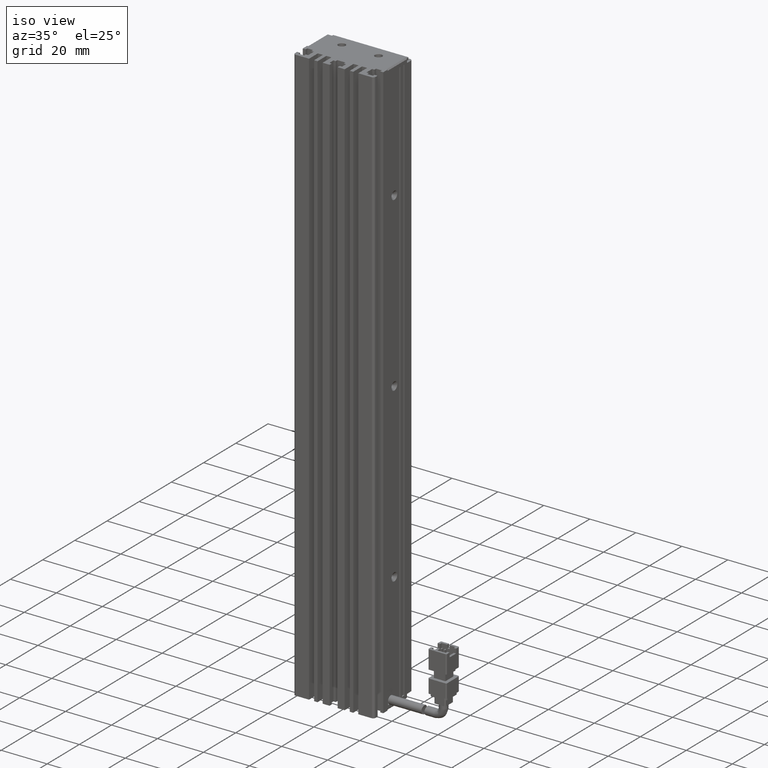
[diagram: clean part render]
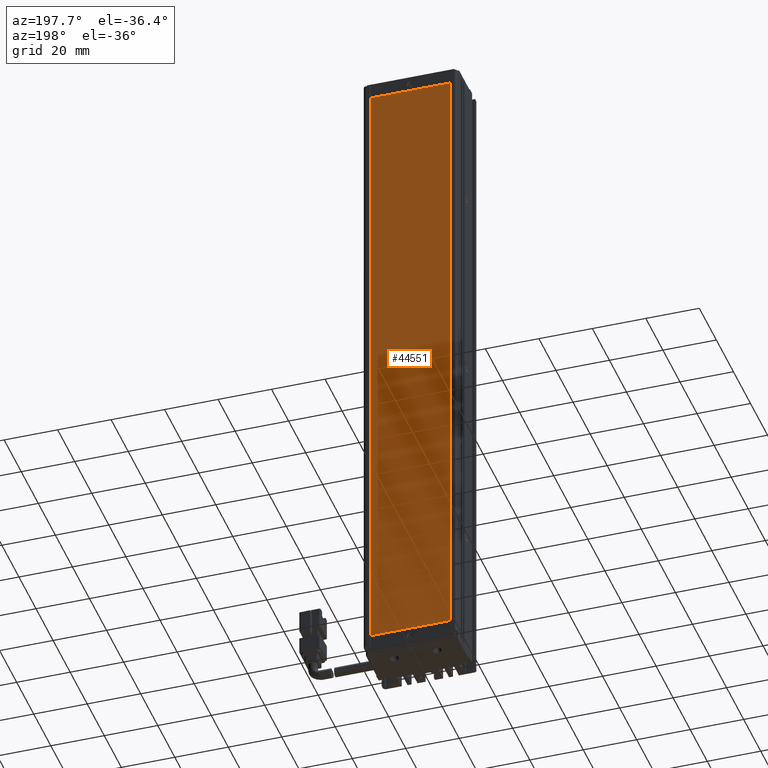
[diagram: tour spotlight — one face highlighted and labeled with its STEP entity id]
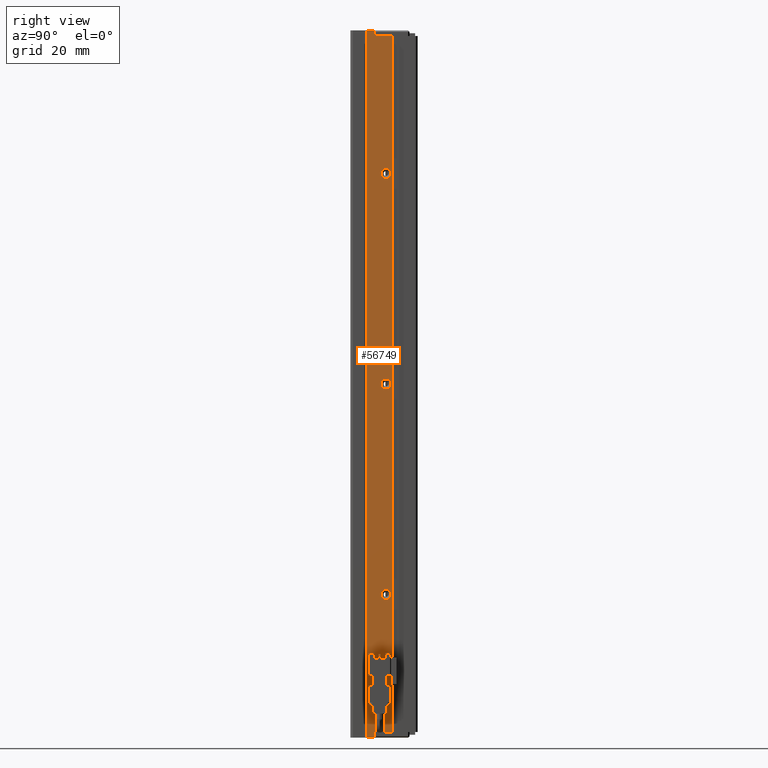
[diagram: tour spotlight — one face highlighted and labeled with its STEP entity id]
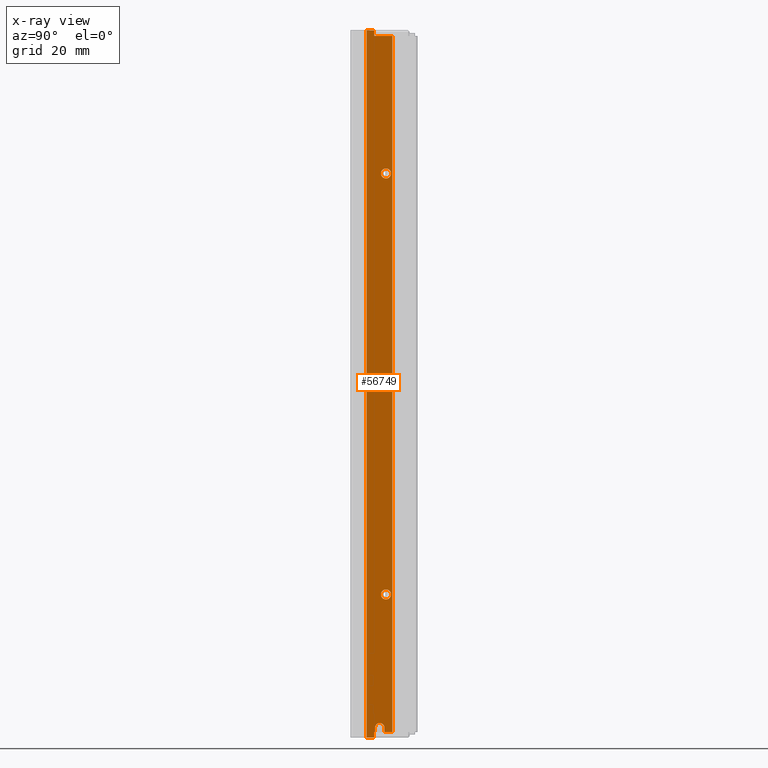
[diagram: x-ray of the same camera — body ghosted, this tour face saturated]
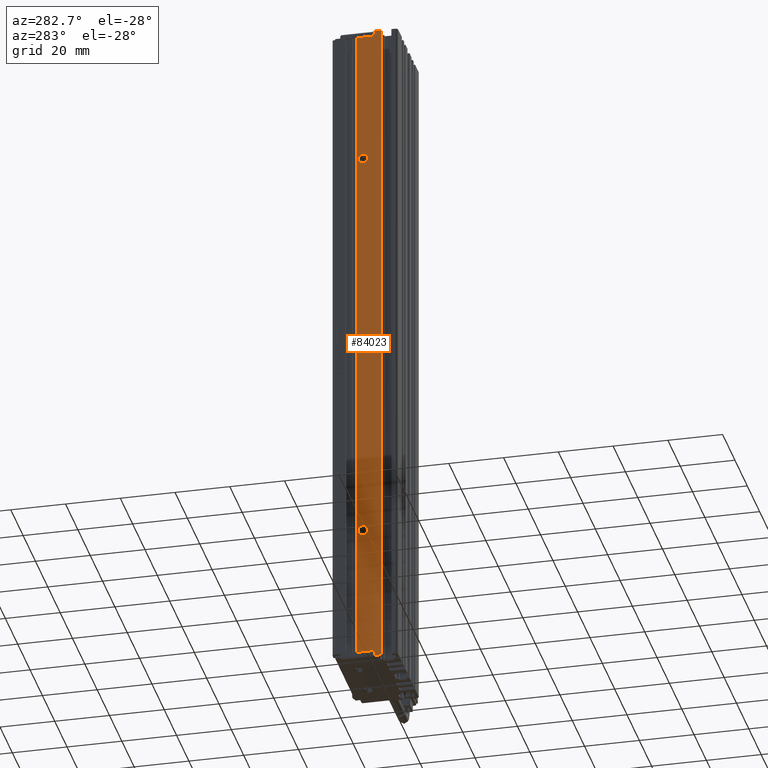
[diagram: tour spotlight — one face highlighted and labeled with its STEP entity id]
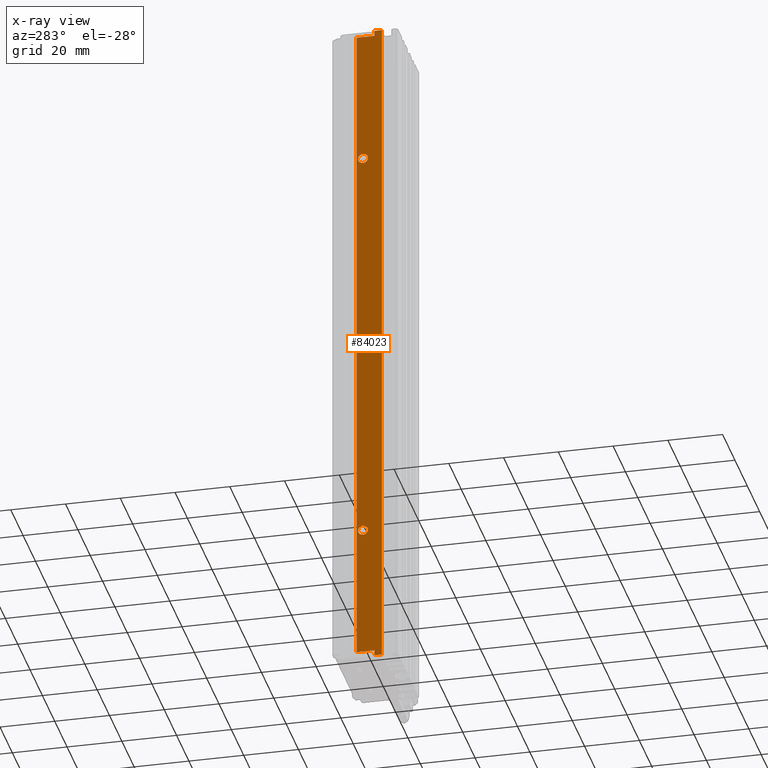
[diagram: x-ray of the same camera — body ghosted, this tour face saturated]
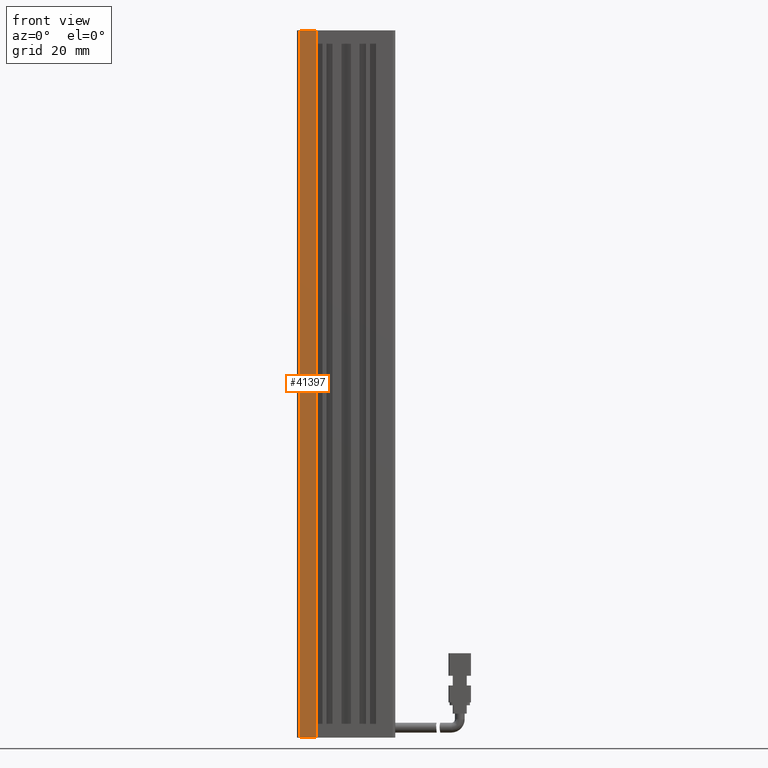
[diagram: tour spotlight — one face highlighted and labeled with its STEP entity id]
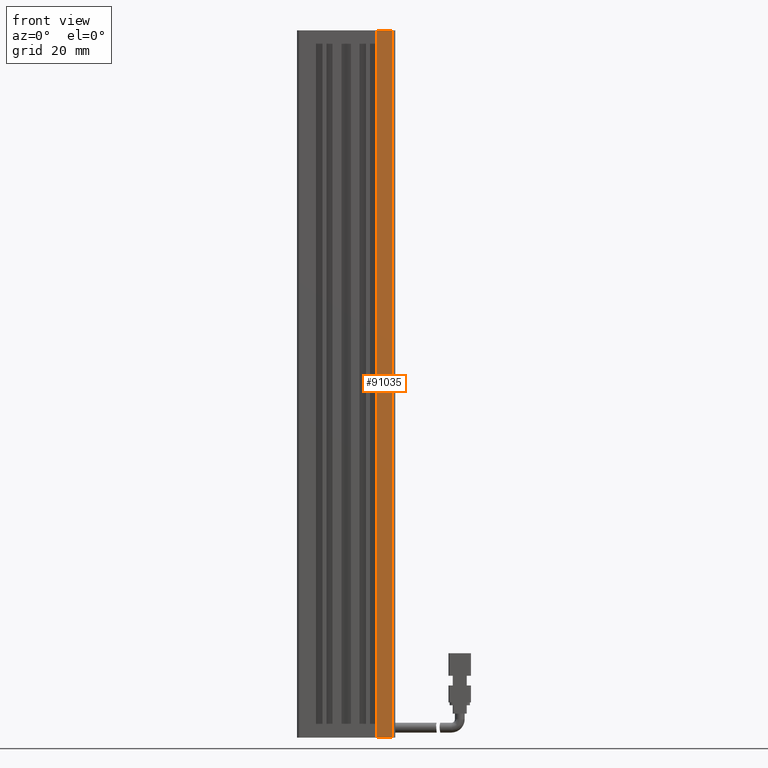
[diagram: tour spotlight — one face highlighted and labeled with its STEP entity id]
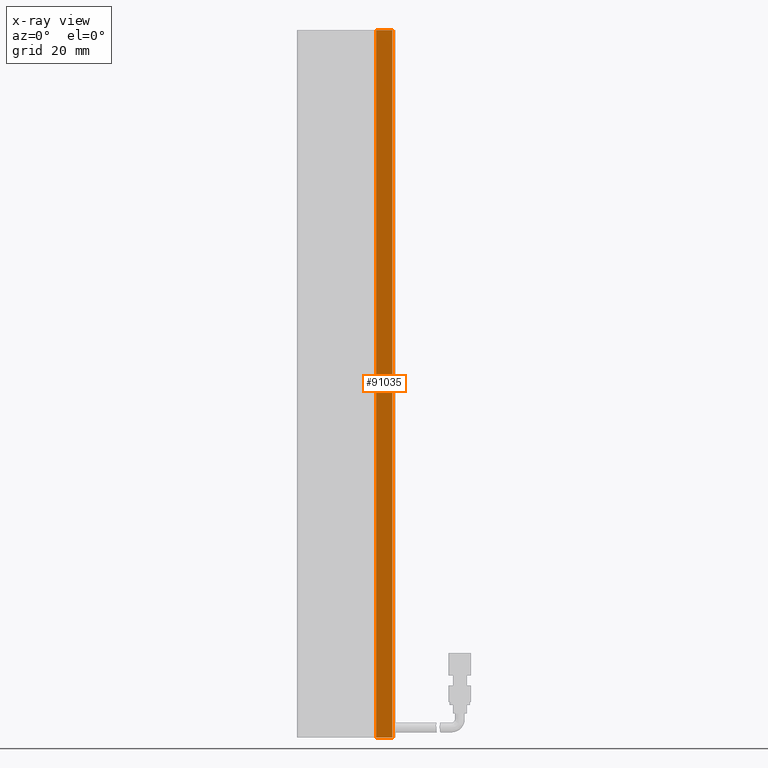
[diagram: x-ray of the same camera — body ghosted, this tour face saturated]
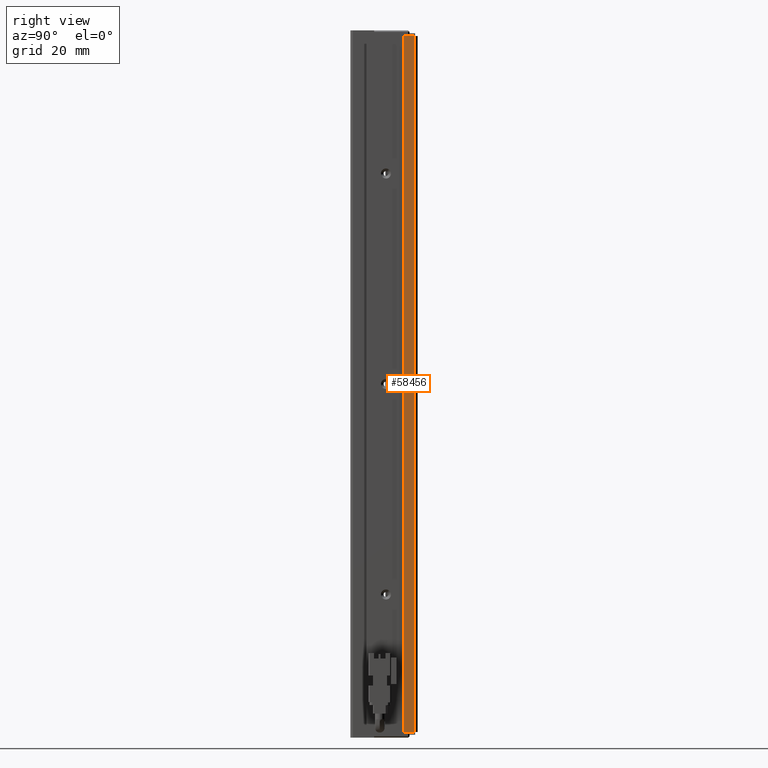
[diagram: tour spotlight — one face highlighted and labeled with its STEP entity id]
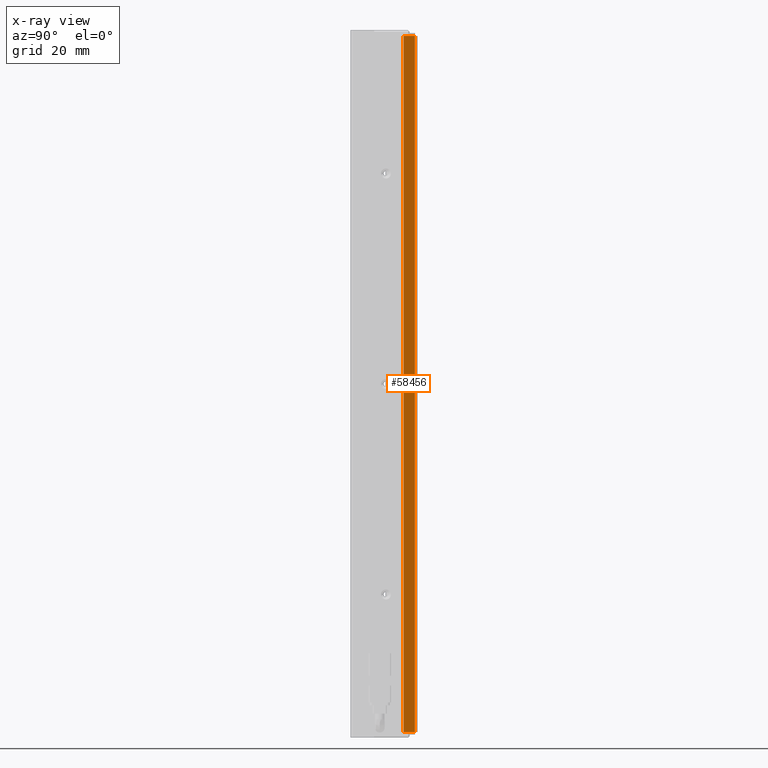
[diagram: x-ray of the same camera — body ghosted, this tour face saturated]
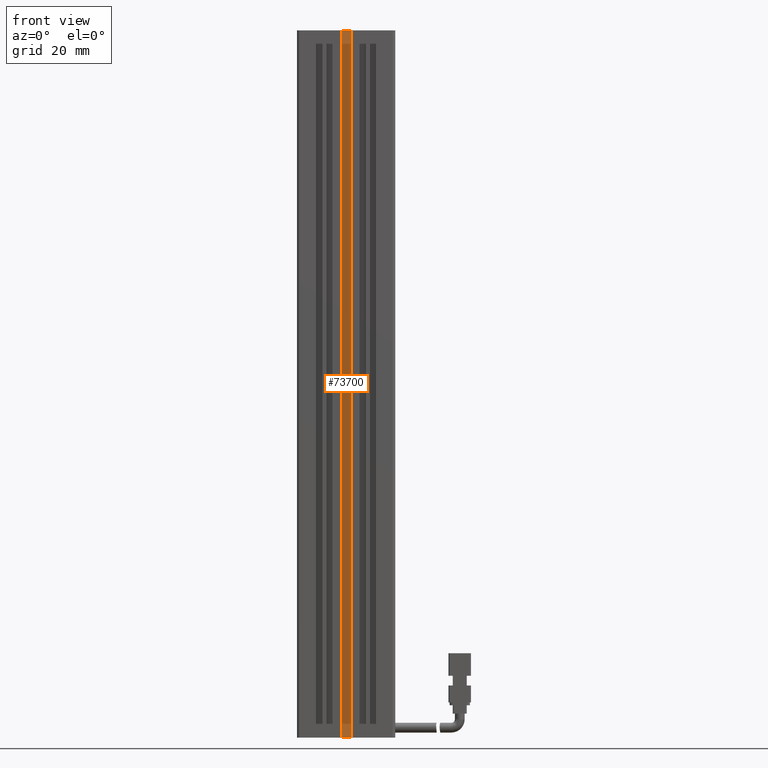
[diagram: tour spotlight — one face highlighted and labeled with its STEP entity id]
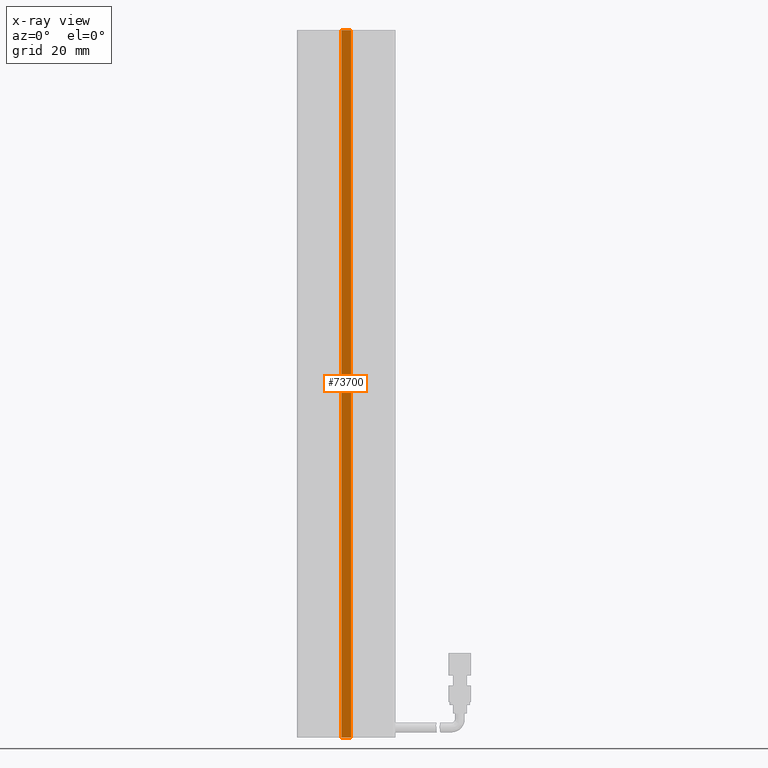
[diagram: x-ray of the same camera — body ghosted, this tour face saturated]
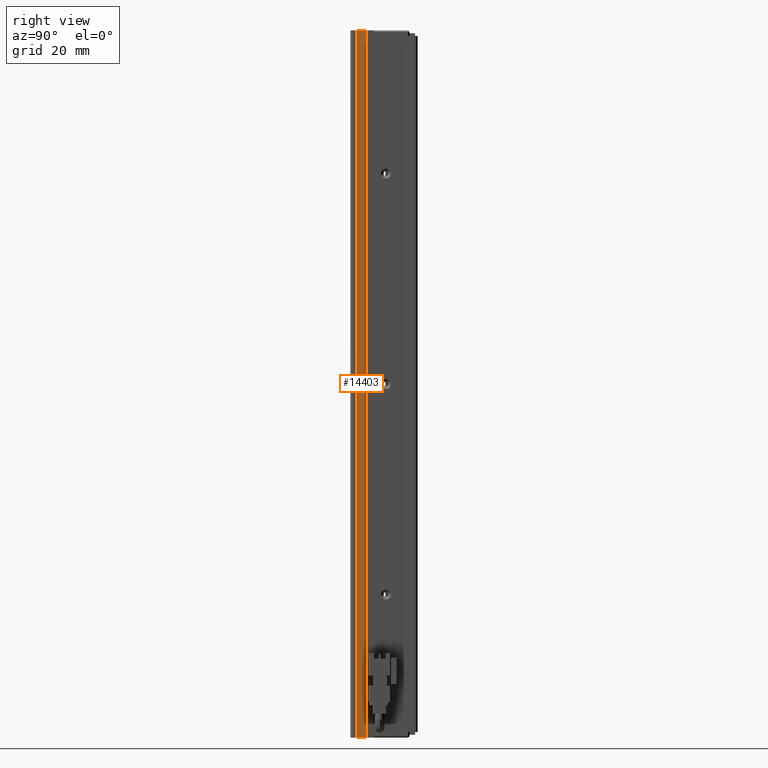
[diagram: tour spotlight — one face highlighted and labeled with its STEP entity id]
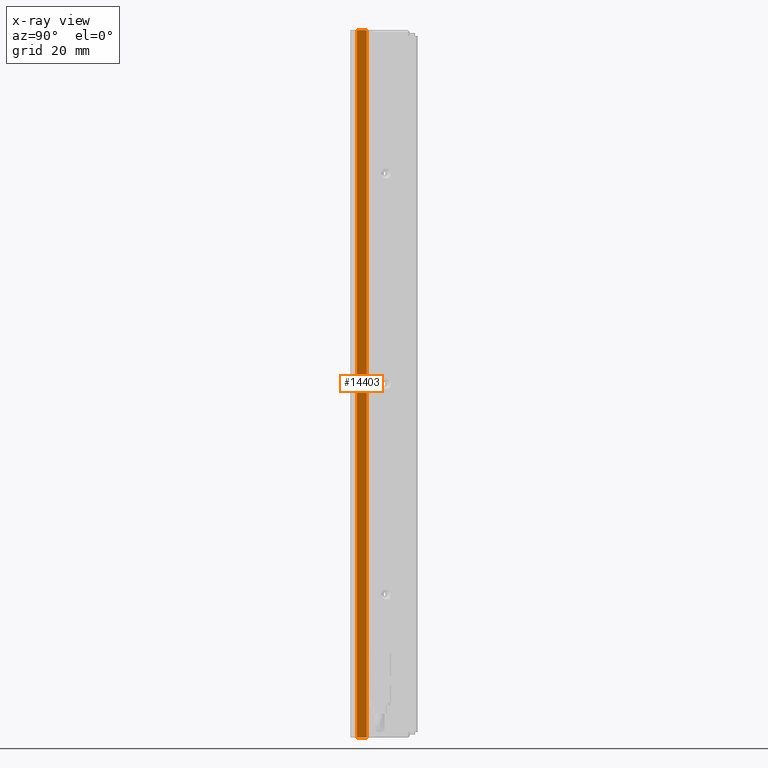
[diagram: x-ray of the same camera — body ghosted, this tour face saturated]
A machine part: a face-by-face anatomy tour. The part has 2226 B-rep faces; the first image is the clean iso view, then the 8 largest visible faces are spotlighted one at a time (largest first), each with its STEP entity span.

Face 1 — auxiliary view, entity #44551. In plain terms, the highlighted planar face has unit normal (0, 1, 0).
Definition (entity closure, byte-faithful):
#3005 = EDGE_LOOP ( 'NONE', ( #80741, #17107, #62490, #27898, #78330 ) ) ;
#5441 = CARTESIAN_POINT ( 'NONE',  ( 55.92537974683542500, 34.29073232304837400, -233.9999728042264200 ) ) ;
#9055 = EDGE_CURVE ( 'NONE', #32840, #63961, #89440, .T. ) ;
#9204 = EDGE_CURVE ( 'NONE', #74088, #32840, #18099, .T. ) ;
#11565 = VERTEX_POINT ( 'NONE', #77264 ) ;
#15329 = CARTESIAN_POINT ( 'NONE',  ( 25.92537974683542500, 34.29073232304837400, -233.9999728042264200 ) ) ;
#17107 = ORIENTED_EDGE ( 'NONE', *, *, #9055, .T. ) ;
#17620 = EDGE_CURVE ( 'NONE', #63961, #11565, #38423, .T. ) ;
#18099 = LINE ( 'NONE', #36057, #83551 ) ;
#20950 = VECTOR ( 'NONE', #50201, 1000.000000000000000 ) ;
#22619 = FACE_OUTER_BOUND ( 'NONE', #3005, .T. ) ;
#26412 = VECTOR ( 'NONE', #62559, 1000.000000000000000 ) ;
#27898 = ORIENTED_EDGE ( 'NONE', *, *, #59986, .T. ) ;
#30666 = CARTESIAN_POINT ( 'NONE',  ( 55.84492731756621000, 34.29073232304837400, -115.0000000000000000 ) ) ;
#32840 = VERTEX_POINT ( 'NONE', #30666 ) ;
#33476 = CARTESIAN_POINT ( 'NONE',  ( 25.92537974683545300, 34.29073232304837400, 4.000027195773581600 ) ) ;
#36057 = CARTESIAN_POINT ( 'NONE',  ( 55.92537974683545300, 34.29073232304837400, 4.000027195773581600 ) ) ;
#38423 = LINE ( 'NONE', #5441, #20950 ) ;
#39472 = DIRECTION ( 'NONE',  ( 0.0000000000000000000, 1.000000000000000000, 0.0000000000000000000 ) ) ;
#44551 = ADVANCED_FACE ( 'NONE', ( #22619 ), #67897, .T. ) ;
#46376 = CARTESIAN_POINT ( 'NONE',  ( 3.278282036302795100E-032, 34.29073232304837400, 4.549530247398007300E-048 ) ) ;
#46951 = CARTESIAN_POINT ( 'NONE',  ( 55.92537974683545300, 34.29073232304837400, 4.000027195773581600 ) ) ;
#50201 = DIRECTION ( 'NONE',  ( -1.000000000000000000, 0.0000000000000000000, 0.0000000000000000000 ) ) ;
#51298 = LINE ( 'NONE', #66431, #59412 ) ;
#52038 = LINE ( 'NONE', #15329, #80028 ) ;
#53304 = DIRECTION ( 'NONE',  ( 0.0000000000000000000, -0.0000000000000000000, 1.000000000000000000 ) ) ;
#58987 = DIRECTION ( 'NONE',  ( 1.000000000000000000, 0.0000000000000000000, 0.0000000000000000000 ) ) ;
#59412 = VECTOR ( 'NONE', #58987, 1000.000000000000000 ) ;
#59986 = EDGE_CURVE ( 'NONE', #11565, #91049, #52038, .T. ) ;
#60606 = CARTESIAN_POINT ( 'NONE',  ( 55.84492731756621000, 34.29073232304837400, -115.0000000000000000 ) ) ;
#62490 = ORIENTED_EDGE ( 'NONE', *, *, #17620, .T. ) ;
#62559 = DIRECTION ( 'NONE',  ( 0.0006760708341950601100, 0.0000000000000000000, -0.9999997714640873600 ) ) ;
#63961 = VERTEX_POINT ( 'NONE', #87865 ) ;
#66335 = DIRECTION ( 'NONE',  ( 1.166200656118862000E-016, 0.0000000000000000000, 1.000000000000000000 ) ) ;
#66431 = CARTESIAN_POINT ( 'NONE',  ( 25.92537974683545300, 34.29073232304837400, 4.000027195773581600 ) ) ;
#67897 = PLANE ( 'NONE',  #71863 ) ;
#71863 = AXIS2_PLACEMENT_3D ( 'NONE', #46376, #39472, #53304 ) ;
#73598 = DIRECTION ( 'NONE',  ( -0.0006760705251825751300, 0.0000000000000000000, -0.9999997714642964200 ) ) ;
#74088 = VERTEX_POINT ( 'NONE', #46951 ) ;
#77264 = CARTESIAN_POINT ( 'NONE',  ( 25.92537974683542500, 34.29073232304837400, -233.9999728042264200 ) ) ;
#78330 = ORIENTED_EDGE ( 'NONE', *, *, #79213, .T. ) ;
#79213 = EDGE_CURVE ( 'NONE', #91049, #74088, #51298, .T. ) ;
#80028 = VECTOR ( 'NONE', #66335, 1000.000000000000000 ) ;
#80741 = ORIENTED_EDGE ( 'NONE', *, *, #9204, .T. ) ;
#83551 = VECTOR ( 'NONE', #73598, 1000.000000000000000 ) ;
#87865 = CARTESIAN_POINT ( 'NONE',  ( 55.92537974683542500, 34.29073232304837400, -233.9999728042264200 ) ) ;
#89440 = LINE ( 'NONE', #60606, #26412 ) ;
#91049 = VERTEX_POINT ( 'NONE', #33476 ) ;

Face 2 — right view, entity #56749. An x-ray twin of the same camera follows (body ghosted, this face saturated) — the face is partly hidden behind the body. In plain terms, the highlighted planar face has unit normal (-1, -0, 0).
Definition (entity closure, byte-faithful):
#62 = CARTESIAN_POINT ( 'NONE',  ( 58.42537974683542500, 19.49073232304837000, 10.99999999999999600 ) ) ;
#553 = DIRECTION ( 'NONE',  ( 7.380418287155808400E-032, -1.000000000000000000, 0.0000000000000000000 ) ) ;
#1023 = AXIS2_PLACEMENT_3D ( 'NONE', #17154, #75976, #76618 ) ;
#1386 = DIRECTION ( 'NONE',  ( 1.000000000000000000, 0.0000000000000000000, 0.0000000000000000000 ) ) ;
#2624 = VECTOR ( 'NONE', #73278, 1000.000000000000000 ) ;
#2917 = CARTESIAN_POINT ( 'NONE',  ( 58.42537974683542500, 16.79073232304836700, 10.99999999999999600 ) ) ;
#3075 = EDGE_CURVE ( 'NONE', #84369, #9511, #4636, .T. ) ;
#3574 = VERTEX_POINT ( 'NONE', #34670 ) ;
#4065 = DIRECTION ( 'NONE',  ( -0.0000000000000000000, 2.238352872228164500E-015, -1.000000000000000000 ) ) ;
#4128 = CARTESIAN_POINT ( 'NONE',  ( 58.42537974683542500, 7.083797468354437600, -241.0000000000000000 ) ) ;
#4382 = VECTOR ( 'NONE', #75420, 1000.000000000000000 ) ;
#4636 = LINE ( 'NONE', #4128, #81696 ) ;
#4966 = AXIS2_PLACEMENT_3D ( 'NONE', #59893, #73303, #37330 ) ;
#5357 = VECTOR ( 'NONE', #48280, 1000.000000000000000 ) ;
#5842 = VERTEX_POINT ( 'NONE', #58763 ) ;
#6730 = CARTESIAN_POINT ( 'NONE',  ( 58.42537974681950900, 23.69073232304836900, -190.0000000000000300 ) ) ;
#7846 = FACE_BOUND ( 'NONE', #68425, .T. ) ;
#7907 = CARTESIAN_POINT ( 'NONE',  ( 58.42537974683542500, 19.84073232304836400, -237.4500000000000200 ) ) ;
#8519 = VECTOR ( 'NONE', #35567, 1000.000000000000000 ) ;
#9435 = CIRCLE ( 'NONE', #34965, 1.800000000059753800 ) ;
#9511 = VERTEX_POINT ( 'NONE', #54990 ) ;
#9549 = ORIENTED_EDGE ( 'NONE', *, *, #58088, .F. ) ;
#10178 = VERTEX_POINT ( 'NONE', #59249 ) ;
#10857 = AXIS2_PLACEMENT_3D ( 'NONE', #30155, #74622, #51536 ) ;
#11833 = VECTOR ( 'NONE', #53041, 1000.000000000000000 ) ;
#12943 = VERTEX_POINT ( 'NONE', #46798 ) ;
#13125 = CIRCLE ( 'NONE', #14846, 1.799999999991502800 ) ;
#13185 = DIRECTION ( 'NONE',  ( 1.000000000000000000, 5.687617954022314700E-016, 0.0000000000000000000 ) ) ;
#13514 = CARTESIAN_POINT ( 'NONE',  ( 58.42537974683542500, 21.49073232304837000, -237.4500000000000200 ) ) ;
#14120 = CIRCLE ( 'NONE', #38283, 1.650000000000002100 ) ;
#14200 = PLANE ( 'NONE',  #10857 ) ;
#14846 = AXIS2_PLACEMENT_3D ( 'NONE', #6730, #29837, #37057 ) ;
#14882 = CARTESIAN_POINT ( 'NONE',  ( 58.42537974683542500, 19.49073232304837000, -241.0000000000000000 ) ) ;
#15252 = DIRECTION ( 'NONE',  ( 0.0000000000000000000, 0.0000000000000000000, -1.000000000000000000 ) ) ;
#16472 = ORIENTED_EDGE ( 'NONE', *, *, #53379, .F. ) ;
#16561 = ORIENTED_EDGE ( 'NONE', *, *, #89348, .T. ) ;
#17154 = CARTESIAN_POINT ( 'NONE',  ( 58.42537974681950900, 23.69073232304837300, -40.00000000000002100 ) ) ;
#18124 = EDGE_CURVE ( 'NONE', #56627, #31394, #84624, .T. ) ;
#18355 = LINE ( 'NONE', #40161, #95506 ) ;
#18933 = CIRCLE ( 'NONE', #53046, 1.800000000059753800 ) ;
#20764 = CARTESIAN_POINT ( 'NONE',  ( 58.42537974681950900, 23.69073232304837300, -41.80000000001428600 ) ) ;
#21268 = VECTOR ( 'NONE', #76934, 1000.000000000000000 ) ;
#21369 = LINE ( 'NONE', #33168, #21268 ) ;
#21597 = VERTEX_POINT ( 'NONE', #2917 ) ;
#21898 = FACE_OUTER_BOUND ( 'NONE', #33293, .T. ) ;
#22520 = VECTOR ( 'NONE', #51091, 1000.000000000000000 ) ;
#23171 = VERTEX_POINT ( 'NONE', #65420 ) ;
#23788 = CARTESIAN_POINT ( 'NONE',  ( 58.42537974687635200, 23.69073232304837300, -115.0000000000000000 ) ) ;
#24515 = VERTEX_POINT ( 'NONE', #50995 ) ;
#25812 = DIRECTION ( 'NONE',  ( 0.0000000000000000000, 0.0000000000000000000, -1.000000000000000000 ) ) ;
#26236 = CARTESIAN_POINT ( 'NONE',  ( 58.42537974683542500, 23.14073232304837200, -239.0000000000000000 ) ) ;
#26818 = EDGE_CURVE ( 'NONE', #84369, #12943, #42387, .T. ) ;
#26993 = ORIENTED_EDGE ( 'NONE', *, *, #67306, .F. ) ;
#28355 = EDGE_LOOP ( 'NONE', ( #70000, #16472 ) ) ;
#29503 = EDGE_CURVE ( 'NONE', #24515, #55608, #31191, .T. ) ;
#29837 = DIRECTION ( 'NONE',  ( 1.000000000000000000, 0.0000000000000000000, 0.0000000000000000000 ) ) ;
#30155 = CARTESIAN_POINT ( 'NONE',  ( 58.42537974683542500, 7.083797468354437600, 10.99999999999999600 ) ) ;
#31191 = LINE ( 'NONE', #68198, #4382 ) ;
#31394 = VERTEX_POINT ( 'NONE', #70528 ) ;
#31647 = ORIENTED_EDGE ( 'NONE', *, *, #66998, .F. ) ;
#32214 = CARTESIAN_POINT ( 'NONE',  ( 58.42537974683542500, 7.083797468354437600, -239.0000000000000000 ) ) ;
#32724 = VERTEX_POINT ( 'NONE', #81043 ) ;
#33168 = CARTESIAN_POINT ( 'NONE',  ( 58.42537974683542500, 7.083797468354435800, 10.99999999999999600 ) ) ;
#33293 = EDGE_LOOP ( 'NONE', ( #16561, #79610, #75245, #61679, #31647, #86830, #53802, #26993, #52382, #76377, #74060, #77654 ) ) ;
#33319 = EDGE_CURVE ( 'NONE', #84648, #40392, #91178, .T. ) ;
#34670 = CARTESIAN_POINT ( 'NONE',  ( 58.42537974681950900, 23.69073232304836900, -191.7999999999915400 ) ) ;
#34753 = CARTESIAN_POINT ( 'NONE',  ( 58.42537974687635200, 23.69073232304837300, -116.8000000000597500 ) ) ;
#34965 = AXIS2_PLACEMENT_3D ( 'NONE', #90456, #1386, #61776 ) ;
#35567 = DIRECTION ( 'NONE',  ( -0.0000000000000000000, -0.0000000000000000000, -1.000000000000000000 ) ) ;
#37057 = DIRECTION ( 'NONE',  ( 0.0000000000000000000, 0.0000000000000000000, -1.000000000000000000 ) ) ;
#37330 = DIRECTION ( 'NONE',  ( 0.0000000000000000000, 0.0000000000000000000, -1.000000000000000000 ) ) ;
#38283 = AXIS2_PLACEMENT_3D ( 'NONE', #13514, #13185, #72946 ) ;
#40161 = CARTESIAN_POINT ( 'NONE',  ( 58.42537974683542500, 19.84073232304836400, -239.0000000000000300 ) ) ;
#40392 = VERTEX_POINT ( 'NONE', #53880 ) ;
#42387 = LINE ( 'NONE', #62, #22520 ) ;
#42424 = CARTESIAN_POINT ( 'NONE',  ( 58.42537974683542500, 25.99073232304837700, 10.99999999999999600 ) ) ;
#43809 = CARTESIAN_POINT ( 'NONE',  ( 58.42537974683542500, 7.083797468354437600, 8.999999999999994700 ) ) ;
#45030 = LINE ( 'NONE', #32214, #5357 ) ;
#46798 = CARTESIAN_POINT ( 'NONE',  ( 58.42537974683542500, 19.49073232304837000, -239.0000000000000000 ) ) ;
#47612 = EDGE_CURVE ( 'NONE', #24515, #5842, #52748, .T. ) ;
#47741 = DIRECTION ( 'NONE',  ( -0.0000000000000000000, 0.0000000000000000000, 1.000000000000000000 ) ) ;
#48188 = CARTESIAN_POINT ( 'NONE',  ( 58.42537974683542500, 23.14073232304837200, -237.4500000000000200 ) ) ;
#48280 = DIRECTION ( 'NONE',  ( 7.380418287155808400E-032, -1.000000000000000000, 0.0000000000000000000 ) ) ;
#49155 = CARTESIAN_POINT ( 'NONE',  ( 58.42537974683542500, 19.49073232304837000, 10.99999999999999600 ) ) ;
#50249 = EDGE_CURVE ( 'NONE', #10178, #40392, #54243, .T. ) ;
#50995 = CARTESIAN_POINT ( 'NONE',  ( 58.42537974683542500, 19.49073232304837000, 8.999999999999994700 ) ) ;
#51091 = DIRECTION ( 'NONE',  ( -0.0000000000000000000, 0.0000000000000000000, 1.000000000000000000 ) ) ;
#51172 = AXIS2_PLACEMENT_3D ( 'NONE', #62721, #92726, #25812 ) ;
#51536 = DIRECTION ( 'NONE',  ( 7.380418287155808400E-032, -1.000000000000000000, 0.0000000000000000000 ) ) ;
#51775 = CARTESIAN_POINT ( 'NONE',  ( 58.42537974683542500, 16.79073232304836700, 10.99999999999999600 ) ) ;
#52211 = CARTESIAN_POINT ( 'NONE',  ( 58.42537974683542500, 7.083797468354437600, -239.0000000000000000 ) ) ;
#52382 = ORIENTED_EDGE ( 'NONE', *, *, #69033, .F. ) ;
#52713 = ORIENTED_EDGE ( 'NONE', *, *, #87960, .F. ) ;
#52748 = LINE ( 'NONE', #43809, #11833 ) ;
#53041 = DIRECTION ( 'NONE',  ( -7.380418287155808400E-032, 1.000000000000000000, -0.0000000000000000000 ) ) ;
#53046 = AXIS2_PLACEMENT_3D ( 'NONE', #23788, #82881, #15252 ) ;
#53379 = EDGE_CURVE ( 'NONE', #23171, #3574, #70352, .T. ) ;
#53802 = ORIENTED_EDGE ( 'NONE', *, *, #29503, .T. ) ;
#53880 = CARTESIAN_POINT ( 'NONE',  ( 58.42537974683542500, 23.14073232304837200, -239.0000000000000000 ) ) ;
#54243 = LINE ( 'NONE', #52211, #58899 ) ;
#54990 = CARTESIAN_POINT ( 'NONE',  ( 58.42537974683542500, 16.79073232304836700, -241.0000000000000000 ) ) ;
#55608 = VERTEX_POINT ( 'NONE', #49155 ) ;
#56627 = VERTEX_POINT ( 'NONE', #20764 ) ;
#56749 = ADVANCED_FACE ( 'NONE', ( #68626, #86193, #21898, #7846 ), #14200, .F. ) ;
#57081 = VERTEX_POINT ( 'NONE', #34753 ) ;
#57675 = LINE ( 'NONE', #42424, #8519 ) ;
#58088 = EDGE_CURVE ( 'NONE', #31394, #56627, #90197, .T. ) ;
#58763 = CARTESIAN_POINT ( 'NONE',  ( 58.42537974683542500, 25.99073232304837700, 8.999999999999994700 ) ) ;
#58899 = VECTOR ( 'NONE', #553, 1000.000000000000000 ) ;
#59249 = CARTESIAN_POINT ( 'NONE',  ( 58.42537974683542500, 25.99073232304837300, -239.0000000000000000 ) ) ;
#59893 = CARTESIAN_POINT ( 'NONE',  ( 58.42537974681950900, 23.69073232304836900, -190.0000000000000300 ) ) ;
#61274 = EDGE_CURVE ( 'NONE', #84648, #63497, #14120, .T. ) ;
#61679 = ORIENTED_EDGE ( 'NONE', *, *, #50249, .F. ) ;
#61776 = DIRECTION ( 'NONE',  ( 0.0000000000000000000, 0.0000000000000000000, -1.000000000000000000 ) ) ;
#62721 = CARTESIAN_POINT ( 'NONE',  ( 58.42537974681950900, 23.69073232304837300, -40.00000000000002100 ) ) ;
#63086 = EDGE_CURVE ( 'NONE', #3574, #23171, #13125, .T. ) ;
#63497 = VERTEX_POINT ( 'NONE', #7907 ) ;
#63864 = DIRECTION ( 'NONE',  ( 7.380418287155808400E-032, -1.000000000000000000, 0.0000000000000000000 ) ) ;
#65420 = CARTESIAN_POINT ( 'NONE',  ( 58.42537974681950900, 23.69073232304836900, -188.2000000000085200 ) ) ;
#66998 = EDGE_CURVE ( 'NONE', #5842, #10178, #57675, .T. ) ;
#67306 = EDGE_CURVE ( 'NONE', #21597, #55608, #21369, .T. ) ;
#68198 = CARTESIAN_POINT ( 'NONE',  ( 58.42537974683542500, 19.49073232304837000, 10.99999999999999600 ) ) ;
#68425 = EDGE_LOOP ( 'NONE', ( #92985, #52713 ) ) ;
#68626 = FACE_BOUND ( 'NONE', #28355, .T. ) ;
#69033 = EDGE_CURVE ( 'NONE', #9511, #21597, #94874, .T. ) ;
#70000 = ORIENTED_EDGE ( 'NONE', *, *, #63086, .F. ) ;
#70352 = CIRCLE ( 'NONE', #4966, 1.799999999991502800 ) ;
#70528 = CARTESIAN_POINT ( 'NONE',  ( 58.42537974681950900, 23.69073232304837300, -38.19999999998575600 ) ) ;
#72034 = EDGE_CURVE ( 'NONE', #32724, #12943, #45030, .T. ) ;
#72946 = DIRECTION ( 'NONE',  ( 0.0000000000000000000, 1.000000000000000000, 0.0000000000000000000 ) ) ;
#73278 = DIRECTION ( 'NONE',  ( 0.0000000000000000000, 0.0000000000000000000, 1.000000000000000000 ) ) ;
#73303 = DIRECTION ( 'NONE',  ( 1.000000000000000000, 0.0000000000000000000, 0.0000000000000000000 ) ) ;
#74060 = ORIENTED_EDGE ( 'NONE', *, *, #26818, .T. ) ;
#74066 = CARTESIAN_POINT ( 'NONE',  ( 58.42537974687635200, 23.69073232304837300, -113.1999999999402500 ) ) ;
#74622 = DIRECTION ( 'NONE',  ( -1.000000000000000000, -7.380418287155808400E-032, 0.0000000000000000000 ) ) ;
#75245 = ORIENTED_EDGE ( 'NONE', *, *, #33319, .T. ) ;
#75420 = DIRECTION ( 'NONE',  ( -0.0000000000000000000, 0.0000000000000000000, 1.000000000000000000 ) ) ;
#75976 = DIRECTION ( 'NONE',  ( 1.000000000000000000, 0.0000000000000000000, 0.0000000000000000000 ) ) ;
#76377 = ORIENTED_EDGE ( 'NONE', *, *, #3075, .F. ) ;
#76618 = DIRECTION ( 'NONE',  ( 0.0000000000000000000, 0.0000000000000000000, -1.000000000000000000 ) ) ;
#76934 = DIRECTION ( 'NONE',  ( 0.0000000000000000000, 1.000000000000000000, 0.0000000000000000000 ) ) ;
#77136 = ORIENTED_EDGE ( 'NONE', *, *, #18124, .F. ) ;
#77654 = ORIENTED_EDGE ( 'NONE', *, *, #72034, .F. ) ;
#79610 = ORIENTED_EDGE ( 'NONE', *, *, #61274, .F. ) ;
#80887 = EDGE_CURVE ( 'NONE', #57081, #93218, #9435, .T. ) ;
#81043 = CARTESIAN_POINT ( 'NONE',  ( 58.42537974683542500, 19.84073232304836400, -239.0000000000000000 ) ) ;
#81696 = VECTOR ( 'NONE', #63864, 1000.000000000000000 ) ;
#81834 = VECTOR ( 'NONE', #4065, 1000.000000000000000 ) ;
#82881 = DIRECTION ( 'NONE',  ( 1.000000000000000000, 0.0000000000000000000, 0.0000000000000000000 ) ) ;
#84369 = VERTEX_POINT ( 'NONE', #14882 ) ;
#84624 = CIRCLE ( 'NONE', #51172, 1.800000000014262400 ) ;
#84648 = VERTEX_POINT ( 'NONE', #48188 ) ;
#86193 = FACE_BOUND ( 'NONE', #92153, .T. ) ;
#86830 = ORIENTED_EDGE ( 'NONE', *, *, #47612, .F. ) ;
#87960 = EDGE_CURVE ( 'NONE', #93218, #57081, #18933, .T. ) ;
#89348 = EDGE_CURVE ( 'NONE', #32724, #63497, #18355, .T. ) ;
#90197 = CIRCLE ( 'NONE', #1023, 1.800000000014262400 ) ;
#90456 = CARTESIAN_POINT ( 'NONE',  ( 58.42537974687635200, 23.69073232304837300, -115.0000000000000000 ) ) ;
#91178 = LINE ( 'NONE', #26236, #81834 ) ;
#92153 = EDGE_LOOP ( 'NONE', ( #77136, #9549 ) ) ;
#92726 = DIRECTION ( 'NONE',  ( 1.000000000000000000, 0.0000000000000000000, 0.0000000000000000000 ) ) ;
#92985 = ORIENTED_EDGE ( 'NONE', *, *, #80887, .F. ) ;
#93218 = VERTEX_POINT ( 'NONE', #74066 ) ;
#94874 = LINE ( 'NONE', #51775, #2624 ) ;
#95506 = VECTOR ( 'NONE', #47741, 1000.000000000000000 ) ;

Face 3 — auxiliary view, entity #84023. An x-ray twin of the same camera follows (body ghosted, this face saturated) — the face is partly hidden behind the body. In plain terms, the highlighted planar face has unit normal (-1, -0, 0).
Definition (entity closure, byte-faithful):
#292 = ORIENTED_EDGE ( 'NONE', *, *, #95343, .T. ) ;
#397 = EDGE_CURVE ( 'NONE', #70026, #40107, #6506, .T. ) ;
#512 = ORIENTED_EDGE ( 'NONE', *, *, #5514, .T. ) ;
#1033 = CARTESIAN_POINT ( 'NONE',  ( 23.42537974683542500, 16.79073232304837400, 10.99999999999999600 ) ) ;
#1725 = DIRECTION ( 'NONE',  ( 0.0000000000000000000, -0.0000000000000000000, -1.000000000000000000 ) ) ;
#2087 = DIRECTION ( 'NONE',  ( 7.380418287155808400E-032, -1.000000000000000000, 0.0000000000000000000 ) ) ;
#2263 = VERTEX_POINT ( 'NONE', #38500 ) ;
#2611 = LINE ( 'NONE', #87720, #34139 ) ;
#3074 = EDGE_LOOP ( 'NONE', ( #75206, #94154 ) ) ;
#3092 = VERTEX_POINT ( 'NONE', #19389 ) ;
#3573 = CARTESIAN_POINT ( 'NONE',  ( 23.42537974685134100, 23.69073232304836900, -38.20000000000846500 ) ) ;
#5514 = EDGE_CURVE ( 'NONE', #67846, #3092, #94903, .T. ) ;
#6506 = LINE ( 'NONE', #8351, #10026 ) ;
#8351 = CARTESIAN_POINT ( 'NONE',  ( 23.42537974683542500, 7.083797468354435800, -239.0000000000000000 ) ) ;
#8468 = DIRECTION ( 'NONE',  ( 0.0000000000000000000, 0.0000000000000000000, 1.000000000000000000 ) ) ;
#8543 = VECTOR ( 'NONE', #39357, 1000.000000000000000 ) ;
#10026 = VECTOR ( 'NONE', #22717, 1000.000000000000000 ) ;
#11695 = EDGE_CURVE ( 'NONE', #91836, #70026, #2611, .T. ) ;
#12384 = DIRECTION ( 'NONE',  ( 0.0000000000000000000, 0.0000000000000000000, 1.000000000000000000 ) ) ;
#12523 = AXIS2_PLACEMENT_3D ( 'NONE', #93371, #48690, #12384 ) ;
#12878 = VERTEX_POINT ( 'NONE', #74583 ) ;
#15951 = FACE_BOUND ( 'NONE', #3074, .T. ) ;
#16466 = CARTESIAN_POINT ( 'NONE',  ( 23.42537974683542500, 7.083797468354435800, 10.99999999999999600 ) ) ;
#16477 = AXIS2_PLACEMENT_3D ( 'NONE', #89327, #45245, #89654 ) ;
#16682 = CARTESIAN_POINT ( 'NONE',  ( 23.42537974683542500, 7.083797468354435800, -241.0000000000000000 ) ) ;
#17704 = DIRECTION ( 'NONE',  ( 0.0000000000000000000, 1.000000000000000000, 0.0000000000000000000 ) ) ;
#18662 = LINE ( 'NONE', #16682, #95812 ) ;
#19389 = CARTESIAN_POINT ( 'NONE',  ( 23.42537974685134100, 23.69073232304836600, -191.8000000000142500 ) ) ;
#19905 = VERTEX_POINT ( 'NONE', #66228 ) ;
#20075 = CARTESIAN_POINT ( 'NONE',  ( 23.42537974683542500, 16.79073232304837400, -241.0000000000000000 ) ) ;
#20844 = CARTESIAN_POINT ( 'NONE',  ( 23.42537974685134100, 23.69073232304836900, -40.00000000000000700 ) ) ;
#21058 = EDGE_CURVE ( 'NONE', #40107, #19905, #44595, .T. ) ;
#21213 = AXIS2_PLACEMENT_3D ( 'NONE', #29984, #52946, #8468 ) ;
#21487 = DIRECTION ( 'NONE',  ( 1.000000000000000000, -0.0000000000000000000, -0.0000000000000000000 ) ) ;
#22664 = DIRECTION ( 'NONE',  ( 1.000000000000000000, -0.0000000000000000000, -0.0000000000000000000 ) ) ;
#22717 = DIRECTION ( 'NONE',  ( 7.380418287155808400E-032, -1.000000000000000000, 0.0000000000000000000 ) ) ;
#24958 = AXIS2_PLACEMENT_3D ( 'NONE', #83532, #21487, #76008 ) ;
#25877 = ORIENTED_EDGE ( 'NONE', *, *, #397, .T. ) ;
#26060 = LINE ( 'NONE', #16466, #8543 ) ;
#26663 = ORIENTED_EDGE ( 'NONE', *, *, #81075, .T. ) ;
#26734 = DIRECTION ( 'NONE',  ( 7.380418287155808400E-032, -1.000000000000000000, 0.0000000000000000000 ) ) ;
#28316 = VECTOR ( 'NONE', #1725, 1000.000000000000000 ) ;
#29669 = VERTEX_POINT ( 'NONE', #69838 ) ;
#29984 = CARTESIAN_POINT ( 'NONE',  ( 23.42537974685134100, 23.69073232304836600, -189.9999999999999700 ) ) ;
#33253 = PLANE ( 'NONE',  #39637 ) ;
#34139 = VECTOR ( 'NONE', #34809, 1000.000000000000000 ) ;
#34809 = DIRECTION ( 'NONE',  ( -0.0000000000000000000, -0.0000000000000000000, -1.000000000000000000 ) ) ;
#35104 = LINE ( 'NONE', #92198, #67775 ) ;
#36251 = VERTEX_POINT ( 'NONE', #56116 ) ;
#36508 = DIRECTION ( 'NONE',  ( 1.000000000000000000, -0.0000000000000000000, -0.0000000000000000000 ) ) ;
#38500 = CARTESIAN_POINT ( 'NONE',  ( 23.42537974679449800, 23.69073232304836900, -113.1999999999402500 ) ) ;
#39357 = DIRECTION ( 'NONE',  ( -7.380418287155808400E-032, 1.000000000000000000, -0.0000000000000000000 ) ) ;
#39637 = AXIS2_PLACEMENT_3D ( 'NONE', #85513, #55529, #26734 ) ;
#40107 = VERTEX_POINT ( 'NONE', #86897 ) ;
#40649 = CARTESIAN_POINT ( 'NONE',  ( 23.42537974683542500, 16.79073232304837400, 10.99999999999999600 ) ) ;
#40929 = EDGE_LOOP ( 'NONE', ( #58639, #92001, #74685, #76375, #25877, #81094, #50265, #292 ) ) ;
#44595 = LINE ( 'NONE', #76422, #28316 ) ;
#45245 = DIRECTION ( 'NONE',  ( 1.000000000000000000, -0.0000000000000000000, -0.0000000000000000000 ) ) ;
#47590 = ORIENTED_EDGE ( 'NONE', *, *, #55210, .T. ) ;
#48690 = DIRECTION ( 'NONE',  ( 1.000000000000000000, -0.0000000000000000000, -0.0000000000000000000 ) ) ;
#49075 = EDGE_CURVE ( 'NONE', #19905, #81648, #18662, .T. ) ;
#49740 = VERTEX_POINT ( 'NONE', #40649 ) ;
#50265 = ORIENTED_EDGE ( 'NONE', *, *, #49075, .T. ) ;
#50446 = EDGE_CURVE ( 'NONE', #49740, #12878, #26060, .T. ) ;
#51826 = VERTEX_POINT ( 'NONE', #3573 ) ;
#52946 = DIRECTION ( 'NONE',  ( 1.000000000000000000, -0.0000000000000000000, -0.0000000000000000000 ) ) ;
#55210 = EDGE_CURVE ( 'NONE', #3092, #67846, #65506, .T. ) ;
#55265 = CARTESIAN_POINT ( 'NONE',  ( 23.42537974685134100, 23.69073232304836600, -188.1999999999857200 ) ) ;
#55529 = DIRECTION ( 'NONE',  ( -1.000000000000000000, -7.380418287155808400E-032, 0.0000000000000000000 ) ) ;
#56116 = CARTESIAN_POINT ( 'NONE',  ( 23.42537974683542500, 19.49073232304837000, 8.999999999999994700 ) ) ;
#58639 = ORIENTED_EDGE ( 'NONE', *, *, #50446, .T. ) ;
#59831 = CARTESIAN_POINT ( 'NONE',  ( 23.42537974683542500, 25.99073232304837000, 8.999999999999994700 ) ) ;
#61198 = EDGE_CURVE ( 'NONE', #36251, #91836, #35104, .T. ) ;
#64775 = VERTEX_POINT ( 'NONE', #92514 ) ;
#65254 = DIRECTION ( 'NONE',  ( 0.0000000000000000000, 0.0000000000000000000, 1.000000000000000000 ) ) ;
#65506 = CIRCLE ( 'NONE', #16477, 1.800000000014262400 ) ;
#66228 = CARTESIAN_POINT ( 'NONE',  ( 23.42537974683542500, 19.49073232304836600, -241.0000000000000000 ) ) ;
#66369 = CARTESIAN_POINT ( 'NONE',  ( 23.42537974683542500, 19.49073232304837000, 10.99999999999999600 ) ) ;
#67357 = CARTESIAN_POINT ( 'NONE',  ( 23.42537974679449800, 23.69073232304836900, -115.0000000000000000 ) ) ;
#67775 = VECTOR ( 'NONE', #17704, 1000.000000000000000 ) ;
#67846 = VERTEX_POINT ( 'NONE', #55265 ) ;
#68525 = CIRCLE ( 'NONE', #80576, 1.799999999991544400 ) ;
#69036 = ORIENTED_EDGE ( 'NONE', *, *, #96357, .T. ) ;
#69588 = VECTOR ( 'NONE', #88294, 1000.000000000000000 ) ;
#69809 = LINE ( 'NONE', #1033, #76833 ) ;
#69838 = CARTESIAN_POINT ( 'NONE',  ( 23.42537974685134100, 23.69073232304836900, -41.79999999999154900 ) ) ;
#70026 = VERTEX_POINT ( 'NONE', #77749 ) ;
#70909 = FACE_BOUND ( 'NONE', #87008, .T. ) ;
#71667 = CIRCLE ( 'NONE', #91156, 1.800000000059753800 ) ;
#71739 = EDGE_CURVE ( 'NONE', #29669, #51826, #68525, .T. ) ;
#74279 = LINE ( 'NONE', #66369, #69588 ) ;
#74583 = CARTESIAN_POINT ( 'NONE',  ( 23.42537974683542500, 19.49073232304837000, 10.99999999999999600 ) ) ;
#74685 = ORIENTED_EDGE ( 'NONE', *, *, #61198, .T. ) ;
#74909 = DIRECTION ( 'NONE',  ( 0.0000000000000000000, 0.0000000000000000000, 1.000000000000000000 ) ) ;
#75206 = ORIENTED_EDGE ( 'NONE', *, *, #93188, .T. ) ;
#76008 = DIRECTION ( 'NONE',  ( 0.0000000000000000000, 0.0000000000000000000, 1.000000000000000000 ) ) ;
#76375 = ORIENTED_EDGE ( 'NONE', *, *, #11695, .T. ) ;
#76422 = CARTESIAN_POINT ( 'NONE',  ( 23.42537974683542500, 19.49073232304837000, 10.99999999999999600 ) ) ;
#76833 = VECTOR ( 'NONE', #83265, 1000.000000000000000 ) ;
#77749 = CARTESIAN_POINT ( 'NONE',  ( 23.42537974683542500, 25.99073232304837300, -239.0000000000000000 ) ) ;
#79451 = CIRCLE ( 'NONE', #12523, 1.800000000059753800 ) ;
#80166 = EDGE_LOOP ( 'NONE', ( #69036, #26663 ) ) ;
#80576 = AXIS2_PLACEMENT_3D ( 'NONE', #20844, #36508, #65254 ) ;
#81075 = EDGE_CURVE ( 'NONE', #64775, #2263, #79451, .T. ) ;
#81094 = ORIENTED_EDGE ( 'NONE', *, *, #21058, .T. ) ;
#81648 = VERTEX_POINT ( 'NONE', #20075 ) ;
#81893 = CIRCLE ( 'NONE', #24958, 1.799999999991544400 ) ;
#83265 = DIRECTION ( 'NONE',  ( 0.0000000000000000000, 0.0000000000000000000, 1.000000000000000000 ) ) ;
#83532 = CARTESIAN_POINT ( 'NONE',  ( 23.42537974685134100, 23.69073232304836900, -40.00000000000000700 ) ) ;
#84023 = ADVANCED_FACE ( 'NONE', ( #90748, #91878, #15951, #70909 ), #33253, .T. ) ;
#85513 = CARTESIAN_POINT ( 'NONE',  ( 23.42537974683542500, 7.083797468354435800, 10.99999999999999600 ) ) ;
#86897 = CARTESIAN_POINT ( 'NONE',  ( 23.42537974683542500, 19.49073232304837000, -239.0000000000000000 ) ) ;
#87008 = EDGE_LOOP ( 'NONE', ( #512, #47590 ) ) ;
#87225 = EDGE_CURVE ( 'NONE', #12878, #36251, #74279, .T. ) ;
#87720 = CARTESIAN_POINT ( 'NONE',  ( 23.42537974683542500, 25.99073232304837300, 10.99999999999999600 ) ) ;
#88294 = DIRECTION ( 'NONE',  ( 0.0000000000000000000, -0.0000000000000000000, -1.000000000000000000 ) ) ;
#89327 = CARTESIAN_POINT ( 'NONE',  ( 23.42537974685134100, 23.69073232304836600, -189.9999999999999700 ) ) ;
#89654 = DIRECTION ( 'NONE',  ( 0.0000000000000000000, 0.0000000000000000000, 1.000000000000000000 ) ) ;
#90748 = FACE_OUTER_BOUND ( 'NONE', #40929, .T. ) ;
#91156 = AXIS2_PLACEMENT_3D ( 'NONE', #67357, #22664, #74909 ) ;
#91836 = VERTEX_POINT ( 'NONE', #59831 ) ;
#91878 = FACE_BOUND ( 'NONE', #80166, .T. ) ;
#92001 = ORIENTED_EDGE ( 'NONE', *, *, #87225, .T. ) ;
#92198 = CARTESIAN_POINT ( 'NONE',  ( 23.42537974683542500, 34.99073232304837700, 8.999999999999994700 ) ) ;
#92514 = CARTESIAN_POINT ( 'NONE',  ( 23.42537974679449800, 23.69073232304836900, -116.8000000000597500 ) ) ;
#93188 = EDGE_CURVE ( 'NONE', #51826, #29669, #81893, .T. ) ;
#93371 = CARTESIAN_POINT ( 'NONE',  ( 23.42537974679449800, 23.69073232304836900, -115.0000000000000000 ) ) ;
#94154 = ORIENTED_EDGE ( 'NONE', *, *, #71739, .T. ) ;
#94903 = CIRCLE ( 'NONE', #21213, 1.800000000014262400 ) ;
#95343 = EDGE_CURVE ( 'NONE', #81648, #49740, #69809, .T. ) ;
#95812 = VECTOR ( 'NONE', #2087, 1000.000000000000000 ) ;
#96357 = EDGE_CURVE ( 'NONE', #2263, #64775, #71667, .T. ) ;

Face 4 — front view, entity #41397. In plain terms, the highlighted planar face has unit normal (-0, -1, 0).
Definition (entity closure, byte-faithful):
#1247 = PLANE ( 'NONE',  #91689 ) ;
#2380 = CARTESIAN_POINT ( 'NONE',  ( 24.42537974683542900, 10.99073232304837000, 10.99999999999999600 ) ) ;
#3490 = DIRECTION ( 'NONE',  ( 1.000000000000000000, -7.380418287155808400E-032, 0.0000000000000000000 ) ) ;
#4716 = CARTESIAN_POINT ( 'NONE',  ( 30.22537974683543300, 10.99073232304837000, 10.99999999999999600 ) ) ;
#7588 = ORIENTED_EDGE ( 'NONE', *, *, #69972, .F. ) ;
#8110 = VERTEX_POINT ( 'NONE', #2380 ) ;
#15867 = DIRECTION ( 'NONE',  ( 1.000000000000000000, 0.0000000000000000000, -0.0000000000000000000 ) ) ;
#16520 = ORIENTED_EDGE ( 'NONE', *, *, #58012, .T. ) ;
#21114 = CARTESIAN_POINT ( 'NONE',  ( 30.22537974683542900, 10.99073232304837000, -241.0000000000000000 ) ) ;
#24531 = DIRECTION ( 'NONE',  ( 1.000000000000000000, 0.0000000000000000000, -0.0000000000000000000 ) ) ;
#26812 = VECTOR ( 'NONE', #24531, 1000.000000000000000 ) ;
#27730 = LINE ( 'NONE', #83557, #90819 ) ;
#35259 = VERTEX_POINT ( 'NONE', #86424 ) ;
#37466 = CARTESIAN_POINT ( 'NONE',  ( 40.92537974683542500, 10.99073232304837000, -241.0000000000000000 ) ) ;
#39128 = DIRECTION ( 'NONE',  ( 0.0000000000000000000, -0.0000000000000000000, -1.000000000000000000 ) ) ;
#41397 = ADVANCED_FACE ( 'NONE', ( #87033 ), #1247, .T. ) ;
#48229 = CARTESIAN_POINT ( 'NONE',  ( 40.92537974683542500, 10.99073232304837000, 10.99999999999999600 ) ) ;
#51551 = EDGE_CURVE ( 'NONE', #8110, #70288, #27730, .T. ) ;
#52563 = LINE ( 'NONE', #4716, #65343 ) ;
#58012 = EDGE_CURVE ( 'NONE', #70288, #60858, #91300, .T. ) ;
#60858 = VERTEX_POINT ( 'NONE', #21114 ) ;
#60878 = ORIENTED_EDGE ( 'NONE', *, *, #51551, .T. ) ;
#61360 = ORIENTED_EDGE ( 'NONE', *, *, #88909, .T. ) ;
#65343 = VECTOR ( 'NONE', #79475, 1000.000000000000000 ) ;
#69972 = EDGE_CURVE ( 'NONE', #8110, #35259, #82797, .T. ) ;
#70288 = VERTEX_POINT ( 'NONE', #80640 ) ;
#71455 = VECTOR ( 'NONE', #15867, 1000.000000000000000 ) ;
#72241 = EDGE_LOOP ( 'NONE', ( #7588, #60878, #16520, #61360 ) ) ;
#79475 = DIRECTION ( 'NONE',  ( 0.0000000000000000000, 0.0000000000000000000, 1.000000000000000000 ) ) ;
#80640 = CARTESIAN_POINT ( 'NONE',  ( 24.42537974683542900, 10.99073232304837000, -241.0000000000000000 ) ) ;
#82797 = LINE ( 'NONE', #91427, #26812 ) ;
#83557 = CARTESIAN_POINT ( 'NONE',  ( 24.42537974683542900, 10.99073232304837000, 10.99999999999999600 ) ) ;
#84774 = DIRECTION ( 'NONE',  ( -7.380418287155808400E-032, -1.000000000000000000, 0.0000000000000000000 ) ) ;
#86424 = CARTESIAN_POINT ( 'NONE',  ( 30.22537974683542900, 10.99073232304837000, 10.99999999999999600 ) ) ;
#87033 = FACE_OUTER_BOUND ( 'NONE', #72241, .T. ) ;
#88909 = EDGE_CURVE ( 'NONE', #60858, #35259, #52563, .T. ) ;
#90819 = VECTOR ( 'NONE', #39128, 1000.000000000000000 ) ;
#91300 = LINE ( 'NONE', #37466, #71455 ) ;
#91427 = CARTESIAN_POINT ( 'NONE',  ( 40.92537974683542500, 10.99073232304837000, 10.99999999999999600 ) ) ;
#91689 = AXIS2_PLACEMENT_3D ( 'NONE', #48229, #84774, #3490 ) ;

Face 5 — front view, entity #91035. An x-ray twin of the same camera follows (body ghosted, this face saturated) — the face is partly hidden behind the body. In plain terms, the highlighted planar face has unit normal (-0, 1, 0).
Definition (entity closure, byte-faithful):
#766 = CARTESIAN_POINT ( 'NONE',  ( 57.42537974683542500, 10.99073232304837000, -241.0000000000000000 ) ) ;
#6167 = EDGE_CURVE ( 'NONE', #90227, #32364, #66506, .T. ) ;
#8326 = CARTESIAN_POINT ( 'NONE',  ( 51.62537974683541400, 10.99073232304837000, 10.99999999999999600 ) ) ;
#9042 = PLANE ( 'NONE',  #11519 ) ;
#11519 = AXIS2_PLACEMENT_3D ( 'NONE', #47260, #62611, #92588 ) ;
#16206 = VERTEX_POINT ( 'NONE', #70720 ) ;
#17774 = LINE ( 'NONE', #8326, #38797 ) ;
#17837 = ORIENTED_EDGE ( 'NONE', *, *, #63372, .T. ) ;
#19684 = DIRECTION ( 'NONE',  ( 1.000000000000000000, 0.0000000000000000000, -0.0000000000000000000 ) ) ;
#23183 = CARTESIAN_POINT ( 'NONE',  ( 51.62537974683541400, 10.99073232304837000, -241.0000000000000000 ) ) ;
#32364 = VERTEX_POINT ( 'NONE', #766 ) ;
#32873 = LINE ( 'NONE', #71607, #53965 ) ;
#35645 = EDGE_CURVE ( 'NONE', #16206, #90227, #76495, .T. ) ;
#36107 = ORIENTED_EDGE ( 'NONE', *, *, #35645, .F. ) ;
#36796 = VECTOR ( 'NONE', #75866, 1000.000000000000000 ) ;
#38797 = VECTOR ( 'NONE', #67076, 1000.000000000000000 ) ;
#39994 = CARTESIAN_POINT ( 'NONE',  ( 57.42537974683542500, 10.99073232304837200, 10.99999999999999600 ) ) ;
#40584 = CARTESIAN_POINT ( 'NONE',  ( 57.42537974683542500, 10.99073232304837000, 10.99999999999999600 ) ) ;
#44312 = VECTOR ( 'NONE', #46900, 1000.000000000000000 ) ;
#46900 = DIRECTION ( 'NONE',  ( -1.163277014425435400E-076, 1.555753819465285400E-061, -1.000000000000000000 ) ) ;
#47260 = CARTESIAN_POINT ( 'NONE',  ( 40.92537974683542500, 10.99073232304836100, 10.99999999999999600 ) ) ;
#53965 = VECTOR ( 'NONE', #19684, 1000.000000000000000 ) ;
#55305 = FACE_OUTER_BOUND ( 'NONE', #68162, .T. ) ;
#62611 = DIRECTION ( 'NONE',  ( -7.477256361968985400E-016, 1.000000000000000000, 1.555753819465285400E-061 ) ) ;
#63372 = EDGE_CURVE ( 'NONE', #83864, #32364, #32873, .T. ) ;
#66506 = LINE ( 'NONE', #39994, #44312 ) ;
#67076 = DIRECTION ( 'NONE',  ( 1.163277014425435400E-076, -1.555753819465285400E-061, 1.000000000000000000 ) ) ;
#68012 = CARTESIAN_POINT ( 'NONE',  ( 40.92537974683542500, 10.99073232304837000, 10.99999999999999600 ) ) ;
#68162 = EDGE_LOOP ( 'NONE', ( #91531, #36107, #70467, #17837 ) ) ;
#70467 = ORIENTED_EDGE ( 'NONE', *, *, #77789, .F. ) ;
#70720 = CARTESIAN_POINT ( 'NONE',  ( 51.62537974683541400, 10.99073232304837000, 10.99999999999999600 ) ) ;
#71607 = CARTESIAN_POINT ( 'NONE',  ( 40.92537974683542500, 10.99073232304837000, -241.0000000000000000 ) ) ;
#75866 = DIRECTION ( 'NONE',  ( 1.000000000000000000, 0.0000000000000000000, -0.0000000000000000000 ) ) ;
#76495 = LINE ( 'NONE', #68012, #36796 ) ;
#77789 = EDGE_CURVE ( 'NONE', #83864, #16206, #17774, .T. ) ;
#83864 = VERTEX_POINT ( 'NONE', #23183 ) ;
#90227 = VERTEX_POINT ( 'NONE', #40584 ) ;
#91035 = ADVANCED_FACE ( 'NONE', ( #55305 ), #9042, .F. ) ;
#91531 = ORIENTED_EDGE ( 'NONE', *, *, #6167, .F. ) ;
#92588 = DIRECTION ( 'NONE',  ( -1.000000000000000000, -7.477256361968985400E-016, 0.0000000000000000000 ) ) ;

Face 6 — right view, entity #58456. An x-ray twin of the same camera follows (body ghosted, this face saturated) — the face is partly hidden behind the body. In plain terms, the highlighted planar face has unit normal (-1, -0, 0).
Definition (entity closure, byte-faithful):
#2592 = EDGE_CURVE ( 'NONE', #60886, #76036, #21175, .T. ) ;
#3719 = DIRECTION ( 'NONE',  ( -0.0000000000000000000, -0.0000000000000000000, -1.000000000000000000 ) ) ;
#4892 = VERTEX_POINT ( 'NONE', #25243 ) ;
#7115 = VECTOR ( 'NONE', #94914, 1000.000000000000000 ) ;
#10768 = DIRECTION ( 'NONE',  ( -0.0000000000000000000, -1.000000000000000000, -0.0000000000000000000 ) ) ;
#11070 = ORIENTED_EDGE ( 'NONE', *, *, #2592, .F. ) ;
#11951 = DIRECTION ( 'NONE',  ( -1.000000000000000000, -7.380418287155808400E-032, 0.0000000000000000000 ) ) ;
#13889 = VERTEX_POINT ( 'NONE', #15868 ) ;
#15868 = CARTESIAN_POINT ( 'NONE',  ( 58.42537974683542500, 29.99073232304837300, 8.999999999999994700 ) ) ;
#21175 = LINE ( 'NONE', #70734, #7115 ) ;
#25243 = CARTESIAN_POINT ( 'NONE',  ( 58.42537974683542500, 33.99073232304837700, 8.999999999999994700 ) ) ;
#33269 = CARTESIAN_POINT ( 'NONE',  ( 58.42537974683542500, 29.99073232304837700, 10.99999999999999600 ) ) ;
#37753 = LINE ( 'NONE', #41213, #45930 ) ;
#39826 = CARTESIAN_POINT ( 'NONE',  ( 58.42537974683542500, 34.99073232304837700, 8.999999999999994700 ) ) ;
#41213 = CARTESIAN_POINT ( 'NONE',  ( 58.42537974683542500, 33.99073232304837700, 10.99999999999999600 ) ) ;
#42969 = PLANE ( 'NONE',  #59266 ) ;
#45163 = VECTOR ( 'NONE', #92373, 1000.000000000000000 ) ;
#45930 = VECTOR ( 'NONE', #3719, 1000.000000000000000 ) ;
#48202 = ORIENTED_EDGE ( 'NONE', *, *, #96605, .F. ) ;
#49549 = EDGE_CURVE ( 'NONE', #76036, #13889, #65033, .T. ) ;
#50383 = FACE_OUTER_BOUND ( 'NONE', #54564, .T. ) ;
#54218 = LINE ( 'NONE', #39826, #66944 ) ;
#54564 = EDGE_LOOP ( 'NONE', ( #66013, #71685, #11070, #48202 ) ) ;
#57667 = EDGE_CURVE ( 'NONE', #4892, #13889, #54218, .T. ) ;
#58456 = ADVANCED_FACE ( 'NONE', ( #50383 ), #42969, .F. ) ;
#59266 = AXIS2_PLACEMENT_3D ( 'NONE', #65471, #11951, #95177 ) ;
#60886 = VERTEX_POINT ( 'NONE', #81814 ) ;
#65033 = LINE ( 'NONE', #33269, #45163 ) ;
#65471 = CARTESIAN_POINT ( 'NONE',  ( 58.42537974683542500, 7.083797468354437600, 10.99999999999999600 ) ) ;
#66013 = ORIENTED_EDGE ( 'NONE', *, *, #57667, .T. ) ;
#66944 = VECTOR ( 'NONE', #10768, 1000.000000000000000 ) ;
#68389 = CARTESIAN_POINT ( 'NONE',  ( 58.42537974683542500, 29.99073232304837300, -239.0000000000000000 ) ) ;
#70734 = CARTESIAN_POINT ( 'NONE',  ( 58.42537974683542500, 34.99073232304837700, -239.0000000000000000 ) ) ;
#71685 = ORIENTED_EDGE ( 'NONE', *, *, #49549, .F. ) ;
#76036 = VERTEX_POINT ( 'NONE', #68389 ) ;
#81814 = CARTESIAN_POINT ( 'NONE',  ( 58.42537974683542500, 33.99073232304837700, -239.0000000000000000 ) ) ;
#92373 = DIRECTION ( 'NONE',  ( 0.0000000000000000000, 0.0000000000000000000, 1.000000000000000000 ) ) ;
#94914 = DIRECTION ( 'NONE',  ( -0.0000000000000000000, -1.000000000000000000, -0.0000000000000000000 ) ) ;
#95177 = DIRECTION ( 'NONE',  ( 7.380418287155808400E-032, -1.000000000000000000, 0.0000000000000000000 ) ) ;
#96605 = EDGE_CURVE ( 'NONE', #4892, #60886, #37753, .T. ) ;

Face 7 — front view, entity #73700. An x-ray twin of the same camera follows (body ghosted, this face saturated) — the face is partly hidden behind the body. In plain terms, the highlighted planar face has unit normal (0, 1, -0).
Definition (entity closure, byte-faithful):
#4020 = LINE ( 'NONE', #42805, #21495 ) ;
#7561 = VECTOR ( 'NONE', #27322, 1000.000000000000000 ) ;
#13244 = CARTESIAN_POINT ( 'NONE',  ( 40.92537974683542500, 15.79073232304836700, 10.99999999999999600 ) ) ;
#21208 = PLANE ( 'NONE',  #72714 ) ;
#21495 = VECTOR ( 'NONE', #44753, 1000.000000000000000 ) ;
#27322 = DIRECTION ( 'NONE',  ( 1.000000000000000000, 0.0000000000000000000, -0.0000000000000000000 ) ) ;
#31316 = ORIENTED_EDGE ( 'NONE', *, *, #79953, .F. ) ;
#34875 = CARTESIAN_POINT ( 'NONE',  ( 40.92537974683542500, 15.79073232304837000, -241.0000000000000000 ) ) ;
#36799 = VECTOR ( 'NONE', #90181, 1000.000000000000000 ) ;
#38607 = VERTEX_POINT ( 'NONE', #39118 ) ;
#38630 = FACE_OUTER_BOUND ( 'NONE', #68774, .T. ) ;
#39118 = CARTESIAN_POINT ( 'NONE',  ( 39.17537974683542500, 15.79073232304836700, 10.99999999999999600 ) ) ;
#42805 = CARTESIAN_POINT ( 'NONE',  ( 39.17537974683542500, 15.79073232304836700, 10.99999999999999600 ) ) ;
#44373 = EDGE_CURVE ( 'NONE', #88137, #38607, #4020, .T. ) ;
#44753 = DIRECTION ( 'NONE',  ( 0.0000000000000000000, 0.0000000000000000000, 1.000000000000000000 ) ) ;
#49220 = CARTESIAN_POINT ( 'NONE',  ( 42.67537974683542500, 15.79073232304836700, 10.99999999999999600 ) ) ;
#49688 = LINE ( 'NONE', #67643, #36799 ) ;
#50082 = EDGE_CURVE ( 'NONE', #88137, #93794, #53108, .T. ) ;
#51320 = DIRECTION ( 'NONE',  ( -1.000000000000000000, 7.380418287155808400E-032, 0.0000000000000000000 ) ) ;
#51647 = DIRECTION ( 'NONE',  ( 7.380418287155808400E-032, 1.000000000000000000, -0.0000000000000000000 ) ) ;
#51966 = ORIENTED_EDGE ( 'NONE', *, *, #50082, .T. ) ;
#53108 = LINE ( 'NONE', #34875, #68177 ) ;
#58963 = LINE ( 'NONE', #13244, #7561 ) ;
#61242 = CARTESIAN_POINT ( 'NONE',  ( 42.67537974683542500, 15.79073232304837000, -241.0000000000000000 ) ) ;
#62962 = CARTESIAN_POINT ( 'NONE',  ( 39.17537974683542500, 15.79073232304836700, -241.0000000000000000 ) ) ;
#67643 = CARTESIAN_POINT ( 'NONE',  ( 42.67537974683542500, 15.79073232304836700, 10.99999999999999600 ) ) ;
#68177 = VECTOR ( 'NONE', #87156, 1000.000000000000000 ) ;
#68774 = EDGE_LOOP ( 'NONE', ( #77851, #31316, #77044, #51966 ) ) ;
#72714 = AXIS2_PLACEMENT_3D ( 'NONE', #95935, #51647, #51320 ) ;
#73700 = ADVANCED_FACE ( 'NONE', ( #38630 ), #21208, .F. ) ;
#77044 = ORIENTED_EDGE ( 'NONE', *, *, #44373, .F. ) ;
#77851 = ORIENTED_EDGE ( 'NONE', *, *, #87399, .F. ) ;
#79953 = EDGE_CURVE ( 'NONE', #38607, #81669, #58963, .T. ) ;
#81669 = VERTEX_POINT ( 'NONE', #49220 ) ;
#87156 = DIRECTION ( 'NONE',  ( 1.000000000000000000, 0.0000000000000000000, -0.0000000000000000000 ) ) ;
#87399 = EDGE_CURVE ( 'NONE', #81669, #93794, #49688, .T. ) ;
#88137 = VERTEX_POINT ( 'NONE', #62962 ) ;
#90181 = DIRECTION ( 'NONE',  ( -0.0000000000000000000, -0.0000000000000000000, -1.000000000000000000 ) ) ;
#93794 = VERTEX_POINT ( 'NONE', #61242 ) ;
#95935 = CARTESIAN_POINT ( 'NONE',  ( 40.92537974683542500, 15.79073232304836700, 10.99999999999999600 ) ) ;

Face 8 — right view, entity #14403. An x-ray twin of the same camera follows (body ghosted, this face saturated) — the face is partly hidden behind the body. In plain terms, the highlighted planar face has unit normal (1, 0, 0).
Definition (entity closure, byte-faithful):
#1868 = DIRECTION ( 'NONE',  ( 0.0000000000000000000, 1.000000000000000000, 0.0000000000000000000 ) ) ;
#3161 = EDGE_CURVE ( 'NONE', #18473, #87833, #11525, .T. ) ;
#4021 = VERTEX_POINT ( 'NONE', #56816 ) ;
#4669 = DIRECTION ( 'NONE',  ( -0.0000000000000000000, 0.0000000000000000000, -1.000000000000000000 ) ) ;
#6629 = CARTESIAN_POINT ( 'NONE',  ( 53.62537974683541400, 7.083797468354435800, 10.99999999999999600 ) ) ;
#11525 = LINE ( 'NONE', #28562, #25591 ) ;
#13322 = CARTESIAN_POINT ( 'NONE',  ( 53.62537974683541400, 13.29073232304837200, -241.0000000000000000 ) ) ;
#14403 = ADVANCED_FACE ( 'NONE', ( #16213 ), #51723, .T. ) ;
#16213 = FACE_OUTER_BOUND ( 'NONE', #36753, .T. ) ;
#16460 = CARTESIAN_POINT ( 'NONE',  ( 53.62537974683541400, 7.083797468354437600, -241.0000000000000000 ) ) ;
#18396 = LINE ( 'NONE', #79750, #40637 ) ;
#18473 = VERTEX_POINT ( 'NONE', #60680 ) ;
#21365 = DIRECTION ( 'NONE',  ( 0.0000000000000000000, -0.0000000000000000000, 1.000000000000000000 ) ) ;
#25591 = VECTOR ( 'NONE', #21365, 1000.000000000000000 ) ;
#28562 = CARTESIAN_POINT ( 'NONE',  ( 53.62537974683541400, 16.79073232304837000, 10.99999999999999600 ) ) ;
#31440 = ORIENTED_EDGE ( 'NONE', *, *, #42877, .T. ) ;
#35941 = VECTOR ( 'NONE', #1868, 1000.000000000000000 ) ;
#36253 = CARTESIAN_POINT ( 'NONE',  ( 53.62537974683541400, 16.79073232304837000, 10.99999999999999600 ) ) ;
#36753 = EDGE_LOOP ( 'NONE', ( #43813, #96764, #31440, #81452 ) ) ;
#40637 = VECTOR ( 'NONE', #4669, 1000.000000000000000 ) ;
#42877 = EDGE_CURVE ( 'NONE', #93109, #18473, #69833, .T. ) ;
#43813 = ORIENTED_EDGE ( 'NONE', *, *, #94491, .F. ) ;
#51723 = PLANE ( 'NONE',  #67671 ) ;
#56816 = CARTESIAN_POINT ( 'NONE',  ( 53.62537974683541400, 13.29073232304837200, 10.99999999999999600 ) ) ;
#60680 = CARTESIAN_POINT ( 'NONE',  ( 53.62537974683541400, 16.79073232304837000, -241.0000000000000000 ) ) ;
#66634 = DIRECTION ( 'NONE',  ( -7.380418287155808400E-032, 1.000000000000000000, 0.0000000000000000000 ) ) ;
#67269 = DIRECTION ( 'NONE',  ( 1.000000000000000000, 7.380418287155808400E-032, 0.0000000000000000000 ) ) ;
#67671 = AXIS2_PLACEMENT_3D ( 'NONE', #6629, #67269, #66634 ) ;
#69833 = LINE ( 'NONE', #16460, #35941 ) ;
#79750 = CARTESIAN_POINT ( 'NONE',  ( 53.62537974683541400, 13.29073232304837200, 10.99999999999999600 ) ) ;
#81452 = ORIENTED_EDGE ( 'NONE', *, *, #3161, .T. ) ;
#83685 = EDGE_CURVE ( 'NONE', #4021, #93109, #18396, .T. ) ;
#85175 = VECTOR ( 'NONE', #95293, 1000.000000000000000 ) ;
#87527 = CARTESIAN_POINT ( 'NONE',  ( 53.62537974683541400, 7.083797468354435800, 10.99999999999999600 ) ) ;
#87833 = VERTEX_POINT ( 'NONE', #36253 ) ;
#89821 = LINE ( 'NONE', #87527, #85175 ) ;
#93109 = VERTEX_POINT ( 'NONE', #13322 ) ;
#94491 = EDGE_CURVE ( 'NONE', #4021, #87833, #89821, .T. ) ;
#95293 = DIRECTION ( 'NONE',  ( 0.0000000000000000000, 1.000000000000000000, 0.0000000000000000000 ) ) ;
#96764 = ORIENTED_EDGE ( 'NONE', *, *, #83685, .T. ) ;